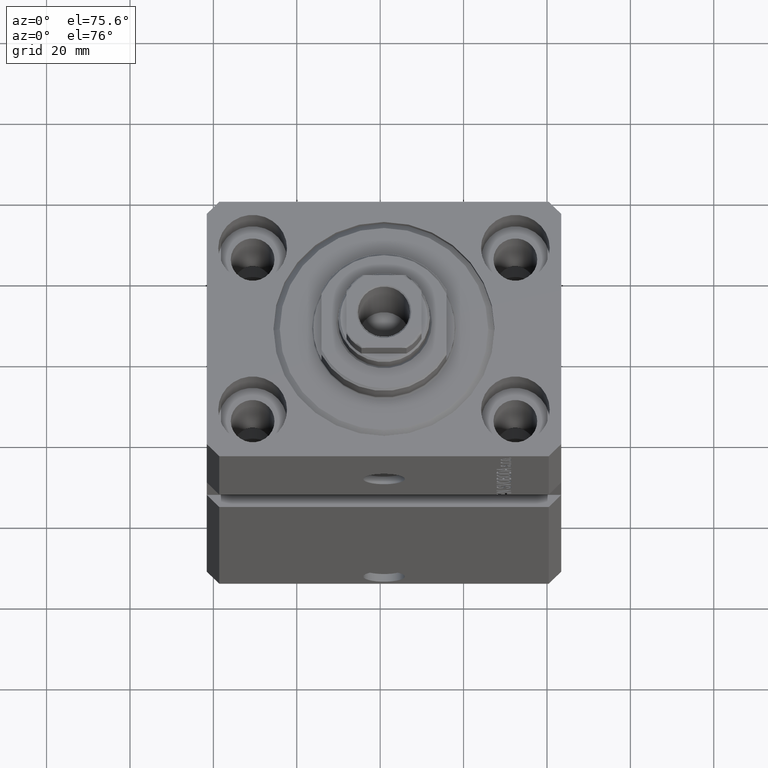
[diagram: clean part render]
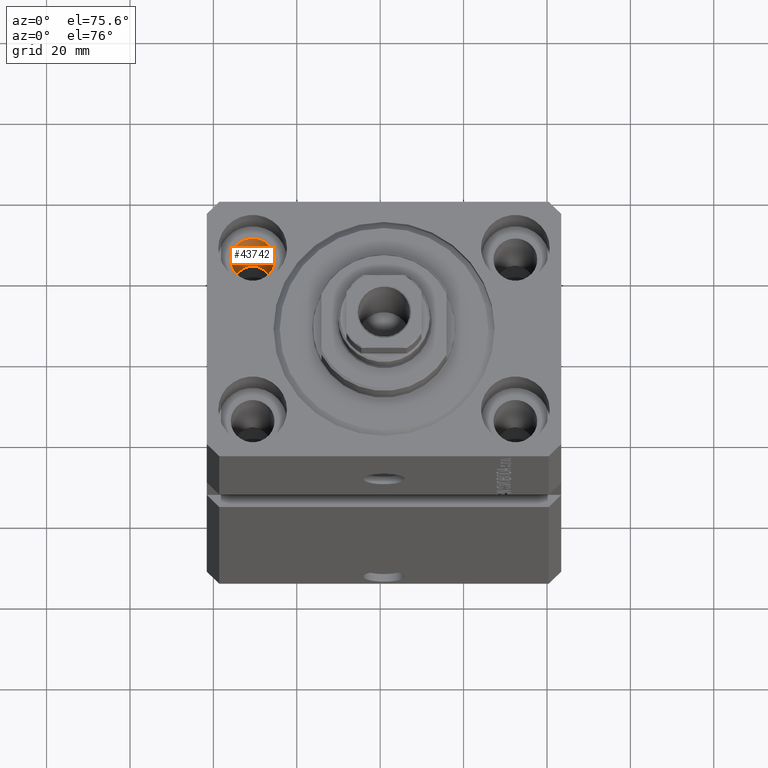
[diagram: same view with one face highlighted and labeled with its STEP entity id]
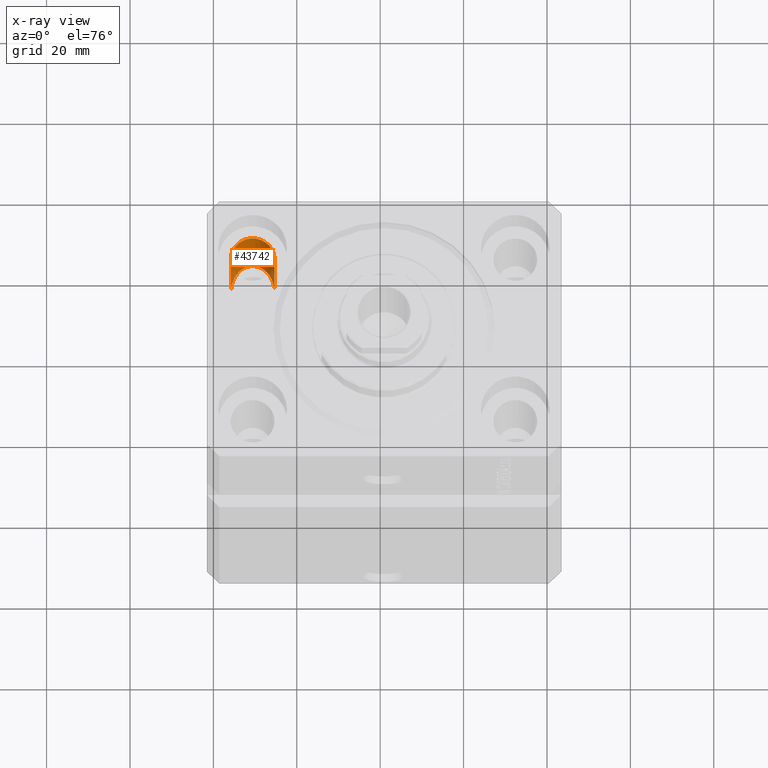
[diagram: x-ray of the same camera — body ghosted, the highlighted face saturated]
A machine part, auxiliary view. The second image highlights one B-rep face of the part: STEP entity #43742.
The next image is the same camera in x-ray: the body ghosted, the highlighted face saturated — about 8% of this face is hidden behind the body in this view.
In plain terms, the highlighted cylindrical surface (edge-blend (fillet) strip) has radius 5.25 mm, axis along (0, 0, 1).
Its self-contained STEP definition (entity closure, byte-faithful):
#296 = VERTEX_POINT ( 'NONE', #26358 ) ;
#3681 = VERTEX_POINT ( 'NONE', #23291 ) ;
#3974 = AXIS2_PLACEMENT_3D ( 'NONE', #5146, #5353, #29609 ) ;
#5146 = CARTESIAN_POINT ( 'NONE',  ( -31.50000000000000000, 20.00000000000000000, -123.0000000000000000 ) ) ;
#5353 = DIRECTION ( 'NONE',  ( -0.000000000000000000, -0.000000000000000000, 1.000000000000000000 ) ) ;
#5466 = CARTESIAN_POINT ( 'NONE',  ( -26.24999999999999645, 20.00000000000000355, -43.00000000000000711 ) ) ;
#5699 = DIRECTION ( 'NONE',  ( -0.000000000000000000, -0.000000000000000000, 1.000000000000000000 ) ) ;
#7035 = DIRECTION ( 'NONE',  ( 1.000000000000000000, 0.000000000000000000, 0.000000000000000000 ) ) ;
#9121 = ORIENTED_EDGE ( 'NONE', *, *, #41186, .T. ) ;
#9124 = CARTESIAN_POINT ( 'NONE',  ( -36.75000000000000000, 20.00000000000000000, -123.0000000000000000 ) ) ;
#10946 = DIRECTION ( 'NONE',  ( -0.000000000000000000, -0.000000000000000000, 1.000000000000000000 ) ) ;
#11655 = VECTOR ( 'NONE', #10946, 1000.000000000000000 ) ;
#11768 = VERTEX_POINT ( 'NONE', #38269 ) ;
#12282 = CARTESIAN_POINT ( 'NONE',  ( -36.74999999999999289, 30.49999999999999645, -32.50000000000001421 ) ) ;
#13464 = EDGE_CURVE ( 'NONE', #296, #11768, #44013, .T. ) ;
#15694 = CARTESIAN_POINT ( 'NONE',  ( -36.74999999999999289, 20.00000000000000355, -43.00000000000000711 ) ) ;
#16587 = CARTESIAN_POINT ( 'NONE',  ( -31.50000000000000000, 20.00000000000000000, -11.00000000000000000 ) ) ;
#19068 = CARTESIAN_POINT ( 'NONE',  ( -26.24999999999999645, 20.00000000000000355, -43.00000000000000711 ) ) ;
#19405 = VERTEX_POINT ( 'NONE', #19068 ) ;
#19448 = CYLINDRICAL_SURFACE ( 'NONE', #3974, 5.250000000000000888 ) ;
#19771 = CARTESIAN_POINT ( 'NONE',  ( -26.25000000000000355, 30.49999999999999645, -32.50000000000001421 ) ) ;
#22117 = AXIS2_PLACEMENT_3D ( 'NONE', #16587, #34008, #7035 ) ;
#23291 = CARTESIAN_POINT ( 'NONE',  ( -26.25000000000000000, 20.00000000000000000, -11.00000000000000000 ) ) ;
#25482 = EDGE_LOOP ( 'NONE', ( #36140, #39152, #31678, #9121 ) ) ;
#26358 = CARTESIAN_POINT ( 'NONE',  ( -36.74999999999999289, 20.00000000000000355, -43.00000000000000711 ) ) ;
#26660 =( BOUNDED_CURVE ( )  B_SPLINE_CURVE ( 3, ( #15694, #12282, #19771, #5466 ),
 .UNSPECIFIED., .F., .F. ) 
 B_SPLINE_CURVE_WITH_KNOTS ( ( 4, 4 ),
 ( 4.712388980384689674, 7.853981633974482790 ),
 .UNSPECIFIED. ) 
 CURVE ( )  GEOMETRIC_REPRESENTATION_ITEM ( )  RATIONAL_B_SPLINE_CURVE ( ( 1.000000000000000000, 0.3333333333333333703, 0.3333333333333333703, 1.000000000000000000 ) ) 
 REPRESENTATION_ITEM ( '' )  );
#27965 = CARTESIAN_POINT ( 'NONE',  ( -26.25000000000000000, 20.00000000000000000, -123.0000000000000000 ) ) ;
#29609 = DIRECTION ( 'NONE',  ( 1.000000000000000000, 0.000000000000000000, 0.000000000000000000 ) ) ;
#29680 = EDGE_CURVE ( 'NONE', #19405, #3681, #31792, .T. ) ;
#30093 = CIRCLE ( 'NONE', #22117, 5.250000000000000888 ) ;
#31678 = ORIENTED_EDGE ( 'NONE', *, *, #29680, .T. ) ;
#31792 = LINE ( 'NONE', #27965, #11655 ) ;
#33798 = VECTOR ( 'NONE', #5699, 1000.000000000000000 ) ;
#34008 = DIRECTION ( 'NONE',  ( 0.000000000000000000, 0.000000000000000000, 1.000000000000000000 ) ) ;
#36140 = ORIENTED_EDGE ( 'NONE', *, *, #13464, .F. ) ;
#38269 = CARTESIAN_POINT ( 'NONE',  ( -36.75000000000000000, 20.00000000000000000, -11.00000000000000000 ) ) ;
#39151 = FACE_OUTER_BOUND ( 'NONE', #25482, .T. ) ;
#39152 = ORIENTED_EDGE ( 'NONE', *, *, #44510, .T. ) ;
#41186 = EDGE_CURVE ( 'NONE', #3681, #11768, #30093, .T. ) ;
#43742 = ADVANCED_FACE ( 'NONE', ( #39151 ), #19448, .F. ) ;
#44013 = LINE ( 'NONE', #9124, #33798 ) ;
#44510 = EDGE_CURVE ( 'NONE', #296, #19405, #26660, .T. ) ;